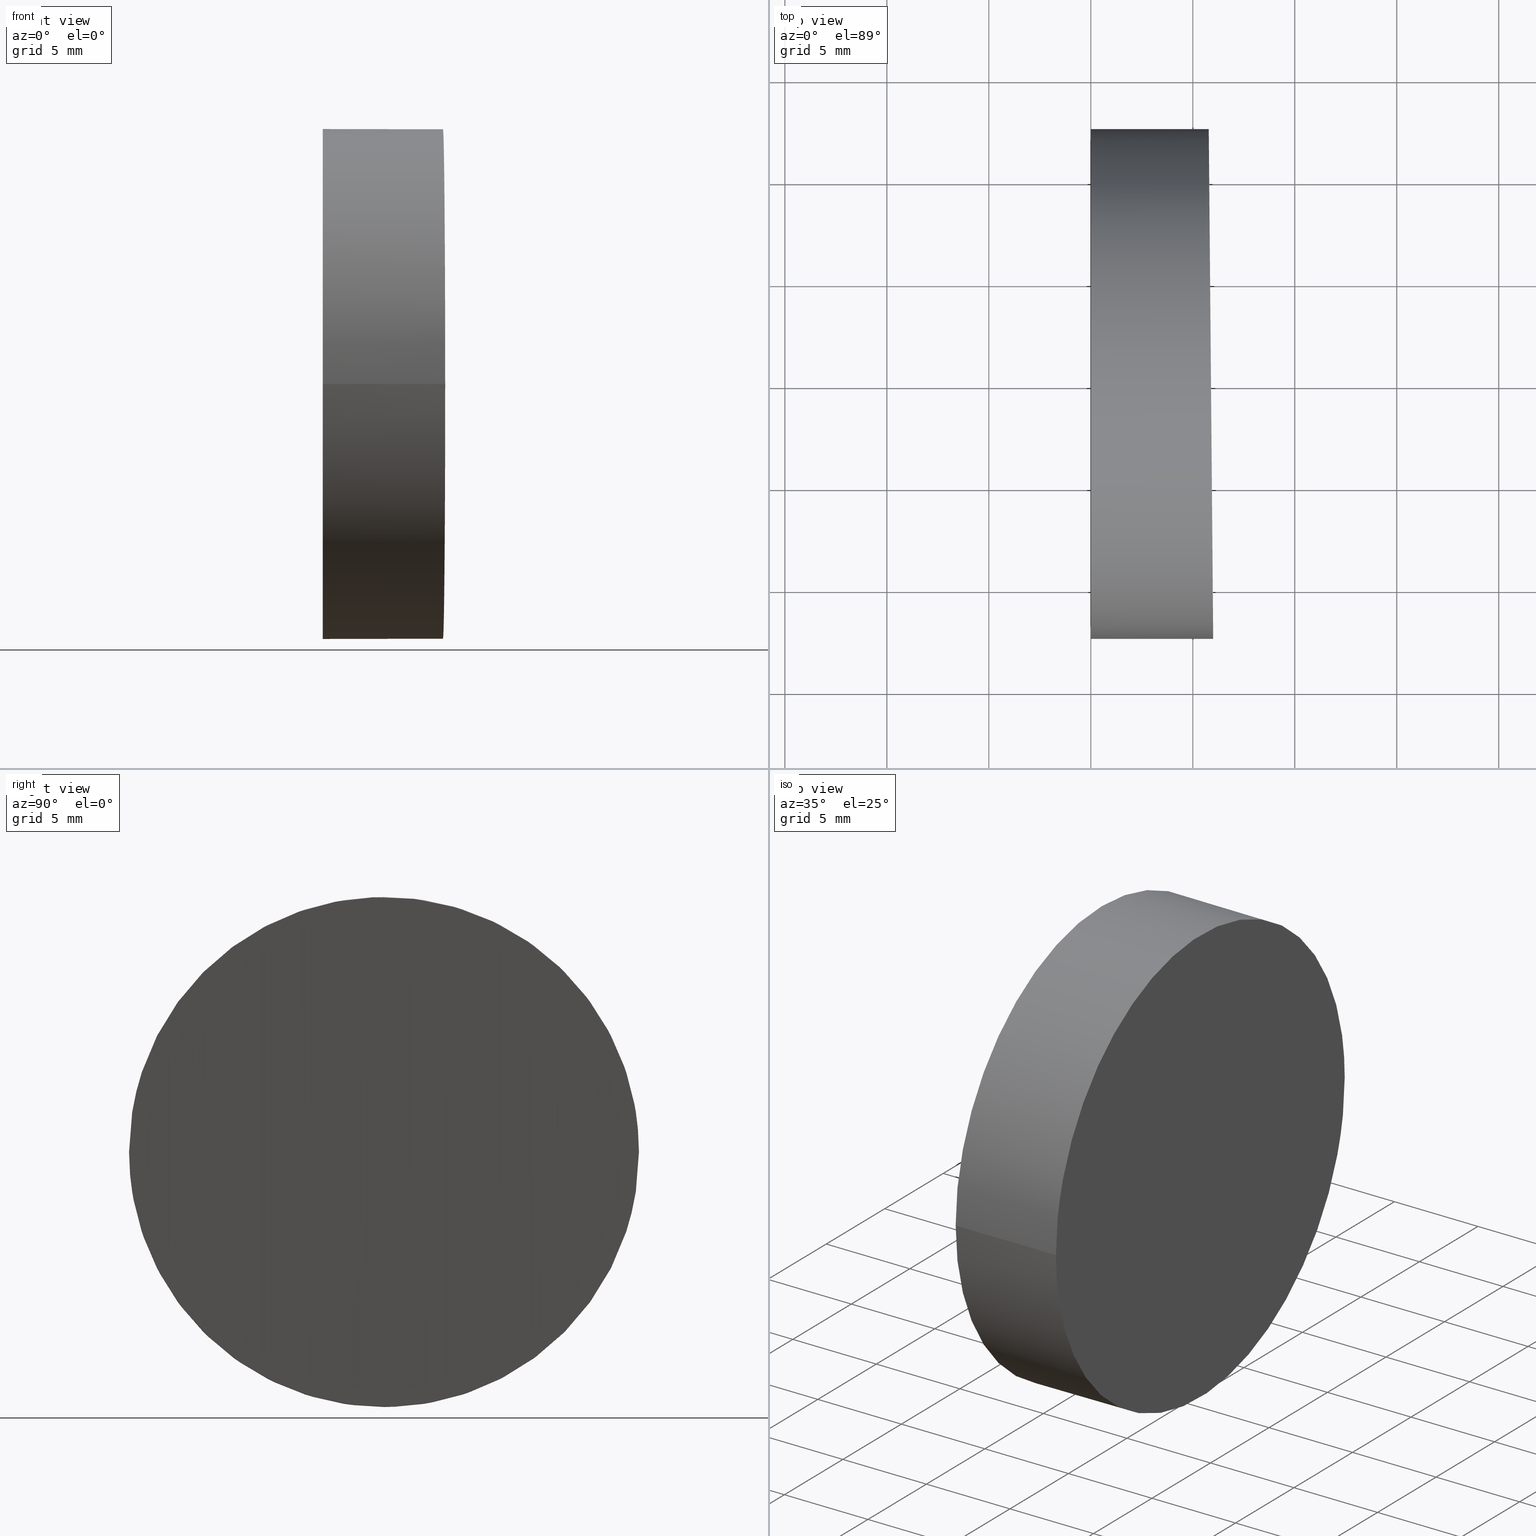
[diagram: canonical four-view strip — front | top / right | iso, engineering-drawing reading convention]
A machine part, canonical four-view strip (front | top / right | iso — engineering-drawing reading convention). The complete STEP part file that produces these views, byte-faithful:
ISO-10303-21;
HEADER;
FILE_DESCRIPTION (( 'STEP AP214' ),
    '1' );
FILE_NAME ('197502.STEP',
    '2019-07-08T05:44:10',
    ( 'user' ),
    ( '΢���й�' ),
    'SwSTEP 2.0',
    'SolidWorks 2016',
    '' );
FILE_SCHEMA (( 'AUTOMOTIVE_DESIGN' ));
ENDSEC;

DATA;
#1 = DIRECTION ( 'NONE',  ( 1.000000000000000000, 1.224646799147353200E-016, -0.0000000000000000000 ) ) ;
#2 = ORIENTED_EDGE ( 'NONE', *, *, #74, .F. ) ;
#3 = AXIS2_PLACEMENT_3D ( 'NONE', #87, #1, #14 ) ;
#4 = DIRECTION ( 'NONE',  ( -1.000000000000000000, -1.224646799147353200E-016, -0.0000000000000000000 ) ) ;
#5 = CARTESIAN_POINT ( 'NONE',  ( 6.000000000000003600, -12.49999999999999800, 12.50000000000000000 ) ) ;
#6 = LINE ( 'NONE', #88, #131 ) ;
#7 = UNCERTAINTY_MEASURE_WITH_UNIT (LENGTH_MEASURE( 1.000000000000000100E-005 ), #117, 'distance_accuracy_value', 'NONE');
#8 = FILL_AREA_STYLE_COLOUR ( '', #26 ) ;
#9 = EDGE_LOOP ( 'NONE', ( #64, #19 ) ) ;
#10 = DIRECTION ( 'NONE',  ( -1.000000000000000000, -1.224646799147353200E-016, -0.0000000000000000000 ) ) ;
#11 = DIRECTION ( 'NONE',  ( -1.000000000000000000, -1.224646799147353200E-016, 0.0000000000000000000 ) ) ;
#12 = CARTESIAN_POINT ( 'NONE',  ( 0.0000000000000000000, 0.0000000000000000000, 12.50000000000000000 ) ) ;
#13 = VERTEX_POINT ( 'NONE', #79 ) ;
#14 = DIRECTION ( 'NONE',  ( -1.224646799147353200E-016, 1.000000000000000000, 0.0000000000000000000 ) ) ;
#15 = EDGE_CURVE ( 'NONE', #13, #85, #6, .T. ) ;
#16 = CARTESIAN_POINT ( 'NONE',  ( 6.000000000000003600, -12.50000000000000000, -12.50000000000000500 ) ) ;
#17 = CARTESIAN_POINT ( 'NONE',  ( -1.530808498934191500E-015, 12.50000000000000000, 12.50000000000000200 ) ) ;
#18 = SURFACE_STYLE_USAGE ( .BOTH. , #140 ) ;
#19 = ORIENTED_EDGE ( 'NONE', *, *, #74, .T. ) ;
#20 = PRODUCT_DEFINITION_FORMATION_WITH_SPECIFIED_SOURCE ( '�κ�', '', #90, .NOT_KNOWN. ) ;
#21 = PRESENTATION_LAYER_ASSIGNMENT (  '', '', ( #49 ) ) ;
#22 = CARTESIAN_POINT ( 'NONE',  ( 5.781828305231207400, 12.50000000000000000, -12.50000000000000500 ) ) ;
#23 = DIRECTION ( 'NONE',  ( 1.224646799147353200E-016, -1.000000000000000000, 0.0000000000000000000 ) ) ;
#24 = DIRECTION ( 'NONE',  ( 0.0000000000000000000, 0.0000000000000000000, 1.000000000000000000 ) ) ;
#25 = SURFACE_STYLE_FILL_AREA ( #107 ) ;
#26 = COLOUR_RGB ( '',1.000000000000000000, 1.000000000000000000, 1.000000000000000000 ) ;
#27 = DIRECTION ( 'NONE',  ( 1.387778780781445700E-016, -1.000000000000000000, 0.0000000000000000000 ) ) ;
#28 = ORIENTED_EDGE ( 'NONE', *, *, #101, .F. ) ;
#29 = PLANE ( 'NONE',  #3 ) ;
#30 = ADVANCED_FACE ( 'NONE', ( #116 ), #99, .T. ) ;
#31 = COLOUR_RGB ( '',1.000000000000000000, 1.000000000000000000, 1.000000000000000000 ) ;
#32 = SURFACE_STYLE_USAGE ( .BOTH. , #73 ) ;
#33 = SURFACE_STYLE_FILL_AREA ( #83 ) ;
#34 = AXIS2_PLACEMENT_3D ( 'NONE', #97, #10, #123 ) ;
#35 = CYLINDRICAL_SURFACE ( 'NONE', #76, 12.50000000000000000 ) ;
#36 =( NAMED_UNIT ( * ) SI_UNIT ( $, .STERADIAN. ) SOLID_ANGLE_UNIT ( ) );
#37 = DIRECTION ( 'NONE',  ( 1.224646799147353200E-016, -1.000000000000000000, 0.0000000000000000000 ) ) ;
#38 = ORIENTED_EDGE ( 'NONE', *, *, #94, .T. ) ;
#39 =( GEOMETRIC_REPRESENTATION_CONTEXT ( 3 ) GLOBAL_UNCERTAINTY_ASSIGNED_CONTEXT ( ( #125 ) ) GLOBAL_UNIT_ASSIGNED_CONTEXT ( ( #137, #45, #36 ) ) REPRESENTATION_CONTEXT ( 'NONE', 'WORKASPACE' ) );
#40 =( BOUNDED_CURVE ( )  B_SPLINE_CURVE ( 3, ( #5, #124, #104, #43 ),
 .UNSPECIFIED., .F., .T. ) 
 B_SPLINE_CURVE_WITH_KNOTS ( ( 4, 4 ),
 ( 3.141592653589793100, 6.283185307179586200 ),
 .UNSPECIFIED. ) 
 CURVE ( )  GEOMETRIC_REPRESENTATION_ITEM ( )  RATIONAL_B_SPLINE_CURVE ( ( 1.000000000000000000, 0.3333333333333333700, 0.3333333333333333700, 1.000000000000000000 ) ) 
 REPRESENTATION_ITEM ( '' )  );
#41 =( LENGTH_UNIT ( ) NAMED_UNIT ( * ) SI_UNIT ( .MILLI., .METRE. ) );
#42 = VECTOR ( 'NONE', #100, 1000.000000000000000 ) ;
#43 = CARTESIAN_POINT ( 'NONE',  ( 5.781828305231207400, 12.50000000000000200, 12.50000000000000200 ) ) ;
#44 = AXIS2_PLACEMENT_3D ( 'NONE', #78, #110, #91 ) ;
#45 =( NAMED_UNIT ( * ) PLANE_ANGLE_UNIT ( ) SI_UNIT ( $, .RADIAN. ) );
#46 = APPLICATION_CONTEXT ( 'automotive_design' ) ;
#47 = VERTEX_POINT ( 'NONE', #17 ) ;
#48 = PRESENTATION_STYLE_ASSIGNMENT (( #18 ) ) ;
#49 = STYLED_ITEM ( 'NONE', ( #48 ), #103 ) ;
#50 = ADVANCED_FACE ( 'NONE', ( #59 ), #29, .F. ) ;
#51 =( NAMED_UNIT ( * ) SI_UNIT ( $, .STERADIAN. ) SOLID_ANGLE_UNIT ( ) );
#52 = CARTESIAN_POINT ( 'NONE',  ( 5.781828305231207400, 12.50000000000000200, 12.50000000000000200 ) ) ;
#53 = FACE_OUTER_BOUND ( 'NONE', #105, .T. ) ;
#54 = UNCERTAINTY_MEASURE_WITH_UNIT (LENGTH_MEASURE( 1.000000000000000100E-005 ), #41, 'distance_accuracy_value', 'NONE');
#55 = DIRECTION ( 'NONE',  ( -1.000000000000000000, -1.224646799147353200E-016, 0.0000000000000000000 ) ) ;
#56 = ORIENTED_EDGE ( 'NONE', *, *, #94, .F. ) ;
#57 = CARTESIAN_POINT ( 'NONE',  ( 9.999999999999998200, 12.50000000000000200, 12.50000000000000200 ) ) ;
#58 = SHAPE_DEFINITION_REPRESENTATION ( #82, #103 ) ;
#59 = FACE_OUTER_BOUND ( 'NONE', #9, .T. ) ;
#60 = CIRCLE ( 'NONE', #138, 12.50000000000000000 ) ;
#61 = FILL_AREA_STYLE_COLOUR ( '', #31 ) ;
#62 = EDGE_LOOP ( 'NONE', ( #56, #69, #130, #2 ) ) ;
#63 = MECHANICAL_DESIGN_GEOMETRIC_PRESENTATION_REPRESENTATION (  '', ( #49 ), #133 ) ;
#64 = ORIENTED_EDGE ( 'NONE', *, *, #113, .T. ) ;
#65 = CARTESIAN_POINT ( 'NONE',  ( 0.0000000000000000000, 0.0000000000000000000, 0.0000000000000000000 ) ) ;
#66 = APPLICATION_PROTOCOL_DEFINITION ( 'draft international standard', 'automotive_design', 1998, #106 ) ;
#67 = AXIS2_PLACEMENT_3D ( 'NONE', #65, #24, #84 ) ;
#68 = PRESENTATION_LAYER_ASSIGNMENT (  '', '', ( #86 ) ) ;
#69 = ORIENTED_EDGE ( 'NONE', *, *, #101, .T. ) ;
#70 = ORIENTED_EDGE ( 'NONE', *, *, #15, .F. ) ;
#71 =( BOUNDED_CURVE ( )  B_SPLINE_CURVE ( 3, ( #52, #22, #16, #96 ),
 .UNSPECIFIED., .F., .T. ) 
 B_SPLINE_CURVE_WITH_KNOTS ( ( 4, 4 ),
 ( 0.0000000000000000000, 3.141592653589793100 ),
 .UNSPECIFIED. ) 
 CURVE ( )  GEOMETRIC_REPRESENTATION_ITEM ( )  RATIONAL_B_SPLINE_CURVE ( ( 1.000000000000000000, 0.3333333333333333700, 0.3333333333333333700, 1.000000000000000000 ) ) 
 REPRESENTATION_ITEM ( '' )  );
#72 = CIRCLE ( 'NONE', #102, 12.50000000000000000 ) ;
#73 = SURFACE_SIDE_STYLE ('',( #25 ) ) ;
#74 = EDGE_CURVE ( 'NONE', #47, #85, #72, .T. ) ;
#75 = VERTEX_POINT ( 'NONE', #111 ) ;
#76 = AXIS2_PLACEMENT_3D ( 'NONE', #77, #4, #27 ) ;
#77 = CARTESIAN_POINT ( 'NONE',  ( 10.00000000000000000, 1.224646799147353300E-015, 12.50000000000000000 ) ) ;
#78 = CARTESIAN_POINT ( 'NONE',  ( 6.000000000000003600, -12.50000000000000200, 25.00000000000000000 ) ) ;
#79 = CARTESIAN_POINT ( 'NONE',  ( 6.000000000000003600, -12.49999999999999800, 12.50000000000000000 ) ) ;
#80 = CARTESIAN_POINT ( 'NONE',  ( 1.530808498934191500E-015, -12.50000000000000000, 12.50000000000000000 ) ) ;
#81 = EDGE_LOOP ( 'NONE', ( #95, #38, #89, #70 ) ) ;
#82 = PRODUCT_DEFINITION_SHAPE ( 'NONE', 'NONE',  #128 ) ;
#83 = FILL_AREA_STYLE ('',( #8 ) ) ;
#84 = DIRECTION ( 'NONE',  ( 1.000000000000000000, 0.0000000000000000000, 0.0000000000000000000 ) ) ;
#85 = VERTEX_POINT ( 'NONE', #80 ) ;
#86 = STYLED_ITEM ( 'NONE', ( #112 ), #129 ) ;
#87 = CARTESIAN_POINT ( 'NONE',  ( -1.326893521891576100E-015, 12.49999999999999800, 25.00000000000000000 ) ) ;
#88 = CARTESIAN_POINT ( 'NONE',  ( 10.00000000000000200, -12.49999999999999800, 12.50000000000000000 ) ) ;
#89 = ORIENTED_EDGE ( 'NONE', *, *, #113, .F. ) ;
#90 = PRODUCT ( '197502', '197502', '', ( #136 ) ) ;
#91 = DIRECTION ( 'NONE',  ( 0.008726535498366981900, -0.9999619230641713100, 0.0000000000000000000 ) ) ;
#92 = PRODUCT_DEFINITION_CONTEXT ( 'detailed design', #46, 'design' ) ;
#93 = ADVANCED_FACE ( 'NONE', ( #134 ), #35, .T. ) ;
#94 = EDGE_CURVE ( 'NONE', #75, #47, #109, .T. ) ;
#95 = ORIENTED_EDGE ( 'NONE', *, *, #120, .T. ) ;
#96 = CARTESIAN_POINT ( 'NONE',  ( 6.000000000000003600, -12.49999999999999800, 12.50000000000000000 ) ) ;
#97 = CARTESIAN_POINT ( 'NONE',  ( 10.00000000000000000, 1.224646799147353300E-015, 12.50000000000000000 ) ) ;
#98 = MECHANICAL_DESIGN_GEOMETRIC_PRESENTATION_REPRESENTATION (  '', ( #86 ), #126 ) ;
#99 = CYLINDRICAL_SURFACE ( 'NONE', #34, 12.50000000000000000 ) ;
#100 = DIRECTION ( 'NONE',  ( -1.000000000000000000, -1.224646799147353200E-016, -0.0000000000000000000 ) ) ;
#101 = EDGE_CURVE ( 'NONE', #75, #13, #71, .T. ) ;
#102 = AXIS2_PLACEMENT_3D ( 'NONE', #12, #55, #37 ) ;
#103 = ADVANCED_BREP_SHAPE_REPRESENTATION ( '197502', ( #129, #67 ), #39 ) ;
#104 = CARTESIAN_POINT ( 'NONE',  ( 5.781828305231207400, 12.50000000000000000, 37.50000000000000000 ) ) ;
#105 = EDGE_LOOP ( 'NONE', ( #119, #28 ) ) ;
#106 = APPLICATION_CONTEXT ( 'automotive_design' ) ;
#107 = FILL_AREA_STYLE ('',( #61 ) ) ;
#108 =( NAMED_UNIT ( * ) PLANE_ANGLE_UNIT ( ) SI_UNIT ( $, .RADIAN. ) );
#109 = LINE ( 'NONE', #57, #42 ) ;
#110 = DIRECTION ( 'NONE',  ( -0.9999619230641714200, -0.008726535498366983600, 0.0000000000000000000 ) ) ;
#111 = CARTESIAN_POINT ( 'NONE',  ( 5.781828305231207400, 12.50000000000000200, 12.50000000000000200 ) ) ;
#112 = PRESENTATION_STYLE_ASSIGNMENT (( #32 ) ) ;
#113 = EDGE_CURVE ( 'NONE', #85, #47, #60, .T. ) ;
#114 = ADVANCED_FACE ( 'NONE', ( #53 ), #127, .F. ) ;
#115 = APPLICATION_PROTOCOL_DEFINITION ( 'draft international standard', 'automotive_design', 1998, #46 ) ;
#116 = FACE_OUTER_BOUND ( 'NONE', #62, .T. ) ;
#117 =( LENGTH_UNIT ( ) NAMED_UNIT ( * ) SI_UNIT ( .MILLI., .METRE. ) );
#118 = CARTESIAN_POINT ( 'NONE',  ( 0.0000000000000000000, 0.0000000000000000000, 12.50000000000000000 ) ) ;
#119 = ORIENTED_EDGE ( 'NONE', *, *, #120, .F. ) ;
#120 = EDGE_CURVE ( 'NONE', #13, #75, #40, .T. ) ;
#121 = DIRECTION ( 'NONE',  ( -1.000000000000000000, -1.224646799147353200E-016, -0.0000000000000000000 ) ) ;
#122 =( NAMED_UNIT ( * ) PLANE_ANGLE_UNIT ( ) SI_UNIT ( $, .RADIAN. ) );
#123 = DIRECTION ( 'NONE',  ( 1.387778780781445700E-016, -1.000000000000000000, 0.0000000000000000000 ) ) ;
#124 = CARTESIAN_POINT ( 'NONE',  ( 6.000000000000003600, -12.50000000000000500, 37.50000000000000000 ) ) ;
#125 = UNCERTAINTY_MEASURE_WITH_UNIT (LENGTH_MEASURE( 1.000000000000000100E-005 ), #137, 'distance_accuracy_value', 'NONE');
#126 =( GEOMETRIC_REPRESENTATION_CONTEXT ( 3 ) GLOBAL_UNCERTAINTY_ASSIGNED_CONTEXT ( ( #7 ) ) GLOBAL_UNIT_ASSIGNED_CONTEXT ( ( #117, #122, #139 ) ) REPRESENTATION_CONTEXT ( 'NONE', 'WORKASPACE' ) );
#127 = PLANE ( 'NONE',  #44 ) ;
#128 = PRODUCT_DEFINITION ( 'δ֪', '', #20, #92 ) ;
#129 = MANIFOLD_SOLID_BREP ( '�г�-����1', #135 ) ;
#130 = ORIENTED_EDGE ( 'NONE', *, *, #15, .T. ) ;
#131 = VECTOR ( 'NONE', #121, 1000.000000000000000 ) ;
#132 = PRODUCT_RELATED_PRODUCT_CATEGORY ( 'part', '', ( #90 ) ) ;
#133 =( GEOMETRIC_REPRESENTATION_CONTEXT ( 3 ) GLOBAL_UNCERTAINTY_ASSIGNED_CONTEXT ( ( #54 ) ) GLOBAL_UNIT_ASSIGNED_CONTEXT ( ( #41, #108, #51 ) ) REPRESENTATION_CONTEXT ( 'NONE', 'WORKASPACE' ) );
#134 = FACE_OUTER_BOUND ( 'NONE', #81, .T. ) ;
#135 = CLOSED_SHELL ( 'NONE', ( #93, #50, #114, #30 ) ) ;
#136 = PRODUCT_CONTEXT ( 'NONE', #106, 'mechanical' ) ;
#137 =( LENGTH_UNIT ( ) NAMED_UNIT ( * ) SI_UNIT ( .MILLI., .METRE. ) );
#138 = AXIS2_PLACEMENT_3D ( 'NONE', #118, #11, #23 ) ;
#139 =( NAMED_UNIT ( * ) SI_UNIT ( $, .STERADIAN. ) SOLID_ANGLE_UNIT ( ) );
#140 = SURFACE_SIDE_STYLE ('',( #33 ) ) ;
ENDSEC;
END-ISO-10303-21;
